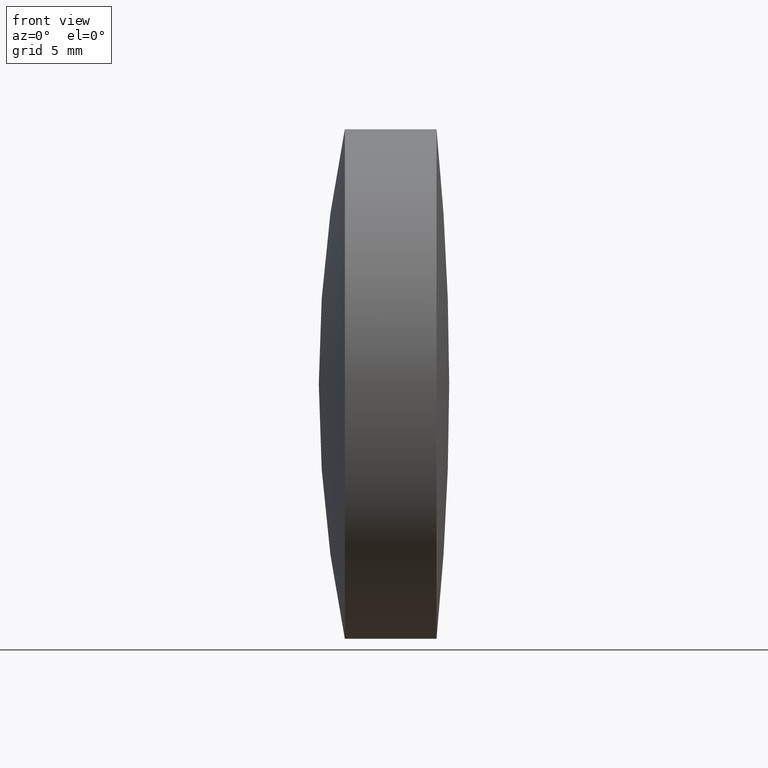
[diagram: clean part render]
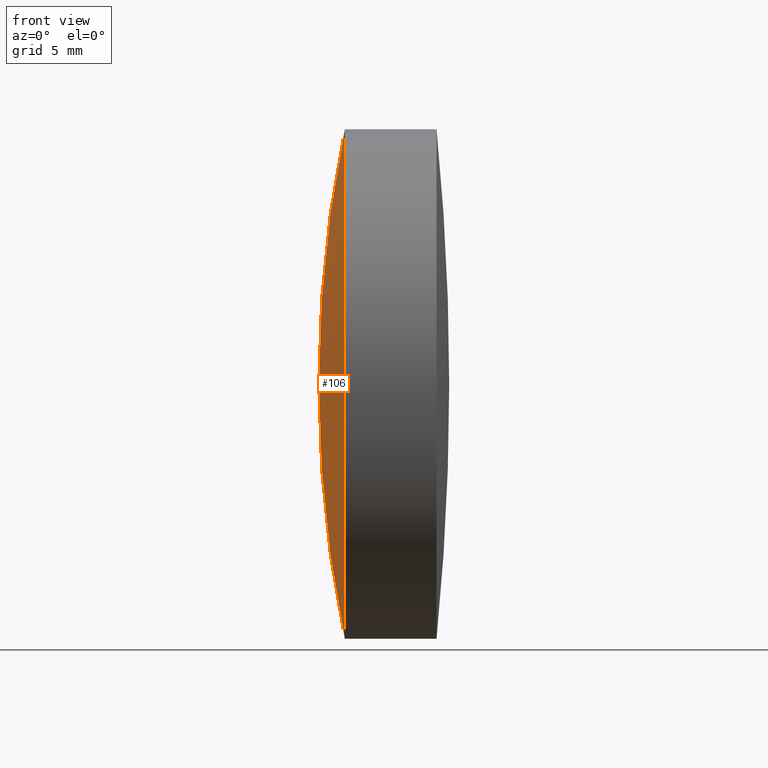
[diagram: same view with one face highlighted and labeled with its STEP entity id]
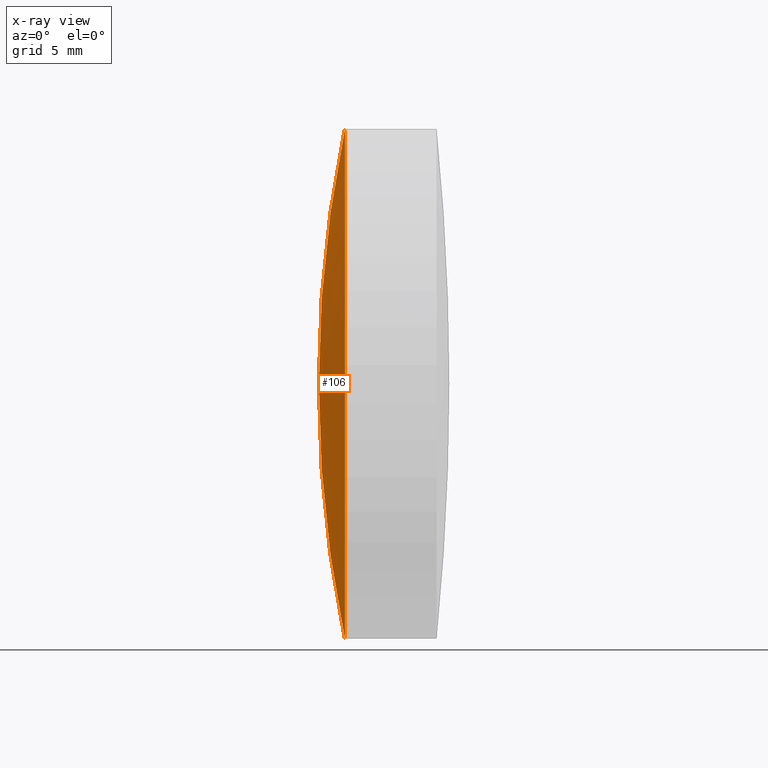
[diagram: x-ray of the same camera — body ghosted, the highlighted face saturated]
A machine part, front view. The second image highlights one B-rep face of the part: STEP entity #106.
The next image is the same camera in x-ray: the body ghosted, the highlighted face saturated — about 0% of this face is hidden behind the body in this view.
In plain terms, the highlighted spherical surface has radius 62.8 mm.
Its self-contained STEP definition (entity closure, byte-faithful):
#5 = VERTEX_POINT ( 'NONE', #275 ) ;
#12 = DIRECTION ( 'NONE',  ( -1.000000000000000000, -0.0000000000000000000, -0.0000000000000000000 ) ) ;
#39 = DIRECTION ( 'NONE',  ( 0.0000000000000000000, -1.224646799147353200E-016, 1.000000000000000000 ) ) ;
#42 = CIRCLE ( 'NONE', #232, 62.79999999999998300 ) ;
#43 = EDGE_CURVE ( 'NONE', #219, #185, #42, .T. ) ;
#51 = SPHERICAL_SURFACE ( 'NONE', #131, 62.79999999999998300 ) ;
#60 = CARTESIAN_POINT ( 'NONE',  ( 315.5958458084193700, 0.0000000000000000000, -3.914091062452059200E-015 ) ) ;
#67 = DIRECTION ( 'NONE',  ( -0.0000000000000000000, 1.000000000000000000, 1.224646799147353200E-016 ) ) ;
#69 = DIRECTION ( 'NONE',  ( 0.0000000000000000000, -1.000000000000000000, 0.0000000000000000000 ) ) ;
#89 = DIRECTION ( 'NONE',  ( 0.0000000000000000000, 0.0000000000000000000, 1.000000000000000000 ) ) ;
#106 = ADVANCED_FACE ( 'NONE', ( #287 ), #51, .T. ) ;
#110 = CARTESIAN_POINT ( 'NONE',  ( 254.0934068323917900, 0.0000000000000000000, 0.0000000000000000000 ) ) ;
#114 = EDGE_LOOP ( 'NONE', ( #118, #303, #269 ) ) ;
#118 = ORIENTED_EDGE ( 'NONE', *, *, #43, .F. ) ;
#127 = CIRCLE ( 'NONE', #326, 12.69999999999999400 ) ;
#131 = AXIS2_PLACEMENT_3D ( 'NONE', #60, #258, #201 ) ;
#185 = VERTEX_POINT ( 'NONE', #319 ) ;
#201 = DIRECTION ( 'NONE',  ( 0.0000000000000000000, 0.0000000000000000000, 1.000000000000000000 ) ) ;
#205 = AXIS2_PLACEMENT_3D ( 'NONE', #273, #69, #247 ) ;
#206 = CARTESIAN_POINT ( 'NONE',  ( 315.5958458084193700, 0.0000000000000000000, -3.914091062452059200E-015 ) ) ;
#213 = EDGE_CURVE ( 'NONE', #219, #5, #127, .T. ) ;
#219 = VERTEX_POINT ( 'NONE', #241 ) ;
#232 = AXIS2_PLACEMENT_3D ( 'NONE', #206, #67, #39 ) ;
#241 = CARTESIAN_POINT ( 'NONE',  ( 254.0934068323917900, 1.555301434917140400E-015, -12.70000000000001900 ) ) ;
#247 = DIRECTION ( 'NONE',  ( 0.0000000000000000000, 0.0000000000000000000, -1.000000000000000000 ) ) ;
#258 = DIRECTION ( 'NONE',  ( 0.0000000000000000000, 1.000000000000000000, 0.0000000000000000000 ) ) ;
#269 = ORIENTED_EDGE ( 'NONE', *, *, #274, .T. ) ;
#273 = CARTESIAN_POINT ( 'NONE',  ( 315.5958458084193700, 0.0000000000000000000, -3.914091062452059200E-015 ) ) ;
#274 = EDGE_CURVE ( 'NONE', #5, #185, #323, .T. ) ;
#275 = CARTESIAN_POINT ( 'NONE',  ( 254.0934068323917900, 0.0000000000000000000, 12.70000000000001500 ) ) ;
#287 = FACE_OUTER_BOUND ( 'NONE', #114, .T. ) ;
#303 = ORIENTED_EDGE ( 'NONE', *, *, #213, .T. ) ;
#319 = CARTESIAN_POINT ( 'NONE',  ( 252.7958458084194100, 0.0000000000000000000, -6.870011312937094700E-017 ) ) ;
#323 = CIRCLE ( 'NONE', #205, 62.79999999999998300 ) ;
#326 = AXIS2_PLACEMENT_3D ( 'NONE', #110, #12, #89 ) ;